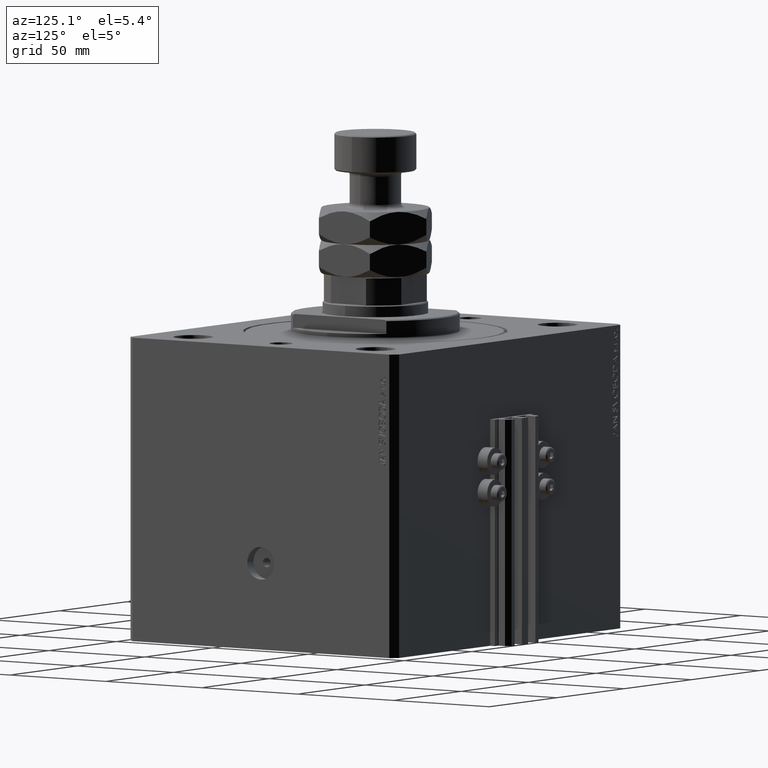
[diagram: clean part render]
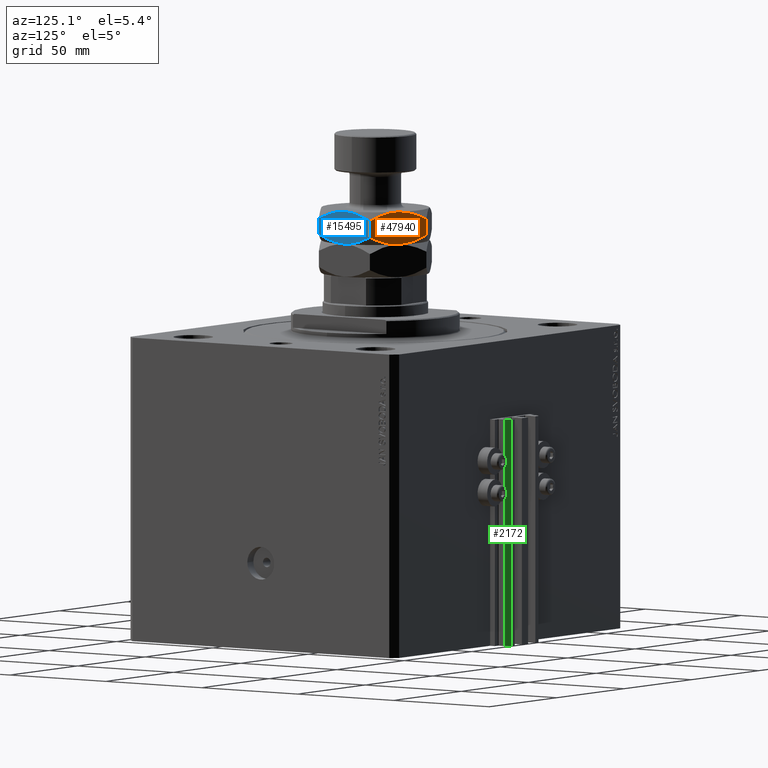
[diagram: same view with three faces highlighted in distinct colors, each labeled with its STEP entity id]
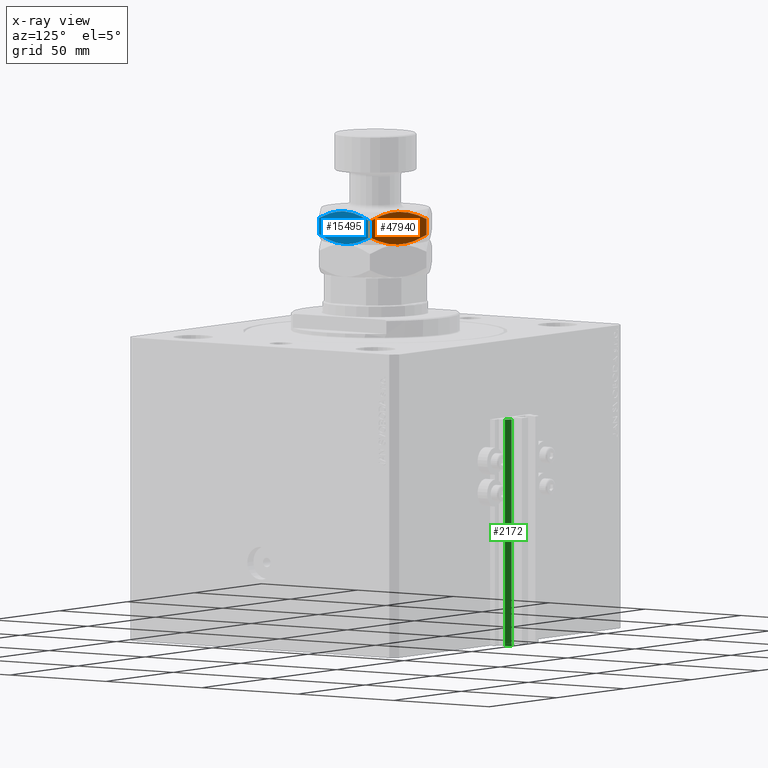
[diagram: x-ray of the same camera — body ghosted, the three highlighted faces saturated]
A machine part, auxiliary view with three faces highlighted in distinct colors.
The next image is the same camera in x-ray (body ghosted, the three faces saturated) — at least one of them is partly hidden behind the body in this view.
Their STEP definitions:

[orange] entity #47940 — the highlighted planar face has unit normal (-0.5, -0.866, 0).
#585 = EDGE_LOOP ( 'NONE', ( #38837, #35297, #18162, #11217, #27389, #2889 ) ) ;
#653 = B_SPLINE_CURVE_WITH_KNOTS ( 'NONE', 3,
 ( #38075, #15069, #7390, #26459, #41553, #3671, #7635, #666, #45029, #45264 ),
 .UNSPECIFIED., .F., .F.,
 ( 4, 2, 2, 2, 4 ),
 ( 2.544306848942777738E-07, 0.006882727124394008057, 0.01032396347124855777, 0.01204458164467583393, 0.01376519981810310662 ),
 .UNSPECIFIED. ) ;
#666 = CARTESIAN_POINT ( 'NONE',  ( 12.51003418050899896, 19.33544078103448527, 27.97785245724465142 ) ) ;
#916 = CARTESIAN_POINT ( 'NONE',  ( 23.00000000000000000, 13.27905619136138959, 17.55811238272277564 ) ) ;
#1055 = FACE_OUTER_BOUND ( 'NONE', #585, .T. ) ;
#1290 = B_SPLINE_CURVE_WITH_KNOTS ( 'NONE', 3,
 ( #19280, #23234, #11356, #45767, #7642, #7396, #37847, #916 ),
 .UNSPECIFIED., .F., .F.,
 ( 4, 2, 2, 4 ),
 ( 0.01376519981810310142, 0.02059946815584628305, 0.02401660232471787559, 0.02743373649358946814 ),
 .UNSPECIFIED. ) ;
#1969 = CARTESIAN_POINT ( 'NONE',  ( 7.485235315951457302, 22.23650975811051467, 14.43516383610315401 ) ) ;
#2433 = CARTESIAN_POINT ( 'NONE',  ( 11.49999999999999822, 19.91858428704208706, 28.00000000000000000 ) ) ;
#2889 = ORIENTED_EDGE ( 'NONE', *, *, #7684, .F. ) ;
#2895 = CARTESIAN_POINT ( 'NONE',  ( 8.974191784962721741, 21.37686033991523260, 14.17725660431697143 ) ) ;
#3391 = VERTEX_POINT ( 'NONE', #45188 ) ;
#3671 = CARTESIAN_POINT ( 'NONE',  ( 14.02580821503727471, 18.46030823416894506, 27.82274339568304100 ) ) ;
#4784 = PLANE ( 'NONE',  #27504 ) ;
#7390 = CARTESIAN_POINT ( 'NONE',  ( 19.35245248169771060, 15.38496873293517098, 26.36778857186889979 ) ) ;
#7396 = CARTESIAN_POINT ( 'NONE',  ( 21.18561130058603226, 14.32659399538265710, 16.55607787929224983 ) ) ;
#7635 = CARTESIAN_POINT ( 'NONE',  ( 13.52432111410264604, 18.74984194688868300, 27.88890122221209822 ) ) ;
#7642 = CARTESIAN_POINT ( 'NONE',  ( 19.32386580747566285, 15.40147325699250835, 15.69106848873858695 ) ) ;
#7684 = EDGE_CURVE ( 'NONE', #16210, #3391, #1290, .T. ) ;
#9074 = CARTESIAN_POINT ( 'NONE',  ( 3.939050586258542253E-17, 26.55811238272278274, 28.00000000000000000 ) ) ;
#9631 = CARTESIAN_POINT ( 'NONE',  ( 3.676134192524337152, 24.43569531709166398, 26.30893151126141305 ) ) ;
#10576 = CARTESIAN_POINT ( 'NONE',  ( 3.647547518302289404, 24.45219984114900669, 15.63221142813110021 ) ) ;
#11217 = ORIENTED_EDGE ( 'NONE', *, *, #14702, .F. ) ;
#11356 = CARTESIAN_POINT ( 'NONE',  ( 15.46660869709777941, 17.62846168800276558, 14.35317254909358020 ) ) ;
#12465 = DIRECTION ( 'NONE',  ( 0.8660254037844385966, -0.4999999999999999445, 0.000000000000000000 ) ) ;
#12540 = LINE ( 'NONE', #9074, #41504 ) ;
#12883 = CARTESIAN_POINT ( 'NONE',  ( 11.49999999999999645, 19.91858428704208706, 14.00000000000000000 ) ) ;
#13130 = CARTESIAN_POINT ( 'NONE',  ( 10.48996581949099038, 20.50172779304968174, 14.02214754275534148 ) ) ;
#13652 = CARTESIAN_POINT ( 'NONE',  ( 23.00000000000000000, 13.27905619136138959, 28.00000000000000000 ) ) ;
#13840 = CARTESIAN_POINT ( 'NONE',  ( 1.814388699413964190, 25.51057457870152234, 25.44392212070776083 ) ) ;
#14702 = EDGE_CURVE ( 'NONE', #31463, #40489, #653, .T. ) ;
#14833 = CARTESIAN_POINT ( 'NONE',  ( 23.00000000000000000, 13.27905619136138959, 24.44188761727722436 ) ) ;
#15069 = CARTESIAN_POINT ( 'NONE',  ( 21.19663298550257480, 14.32023062262917179, 25.48306204854501189 ) ) ;
#15771 = DIRECTION ( 'NONE',  ( -0.000000000000000000, -0.000000000000000000, -1.000000000000000000 ) ) ;
#16210 = VERTEX_POINT ( 'NONE', #12883 ) ;
#18162 = ORIENTED_EDGE ( 'NONE', *, *, #38909, .F. ) ;
#19280 = CARTESIAN_POINT ( 'NONE',  ( 11.49999999999999645, 19.91858428704208706, 14.00000000000000000 ) ) ;
#19900 = DIRECTION ( 'NONE',  ( -0.5000000000000000000, -0.8660254037844387076, 0.000000000000000000 ) ) ;
#23234 = CARTESIAN_POINT ( 'NONE',  ( 13.50031108690881432, 18.76370414255228880, 13.99999999999999467 ) ) ;
#24007 = CARTESIAN_POINT ( 'NONE',  ( 4.624867511207328974, 23.88794388016087211, 26.69215624893394789 ) ) ;
#24281 = CARTESIAN_POINT ( 'NONE',  ( 1.454313212164363718E-16, 26.55811238272278274, 17.55811238272277564 ) ) ;
#24736 = CARTESIAN_POINT ( 'NONE',  ( 0.9006392137919279062, 26.03812809019727581, 24.96187190980276682 ) ) ;
#26459 = CARTESIAN_POINT ( 'NONE',  ( 16.48674779066320539, 17.03948410772190769, 27.31372419864523948 ) ) ;
#27389 = ORIENTED_EDGE ( 'NONE', *, *, #36523, .T. ) ;
#27504 = AXIS2_PLACEMENT_3D ( 'NONE', #31274, #19900, #12465 ) ;
#27985 = CARTESIAN_POINT ( 'NONE',  ( 1.803367014497425203, 25.51693795145501298, 16.51693795145499877 ) ) ;
#28409 = EDGE_CURVE ( 'NONE', #41278, #29967, #12540, .T. ) ;
#28447 = CARTESIAN_POINT ( 'NONE',  ( 7.533391302902213482, 22.20870688608140853, 27.64682745090640736 ) ) ;
#28621 = CARTESIAN_POINT ( 'NONE',  ( -5.585970924421222377E-16, 26.55811238272278274, 24.44188761727722792 ) ) ;
#28929 = CARTESIAN_POINT ( 'NONE',  ( -5.585970924421222377E-16, 26.55811238272278274, 24.44188761727722792 ) ) ;
#29967 = VERTEX_POINT ( 'NONE', #41660 ) ;
#31274 = CARTESIAN_POINT ( 'NONE',  ( 23.00000000000000000, 13.27905619136138959, 28.00000000000000000 ) ) ;
#31463 = VERTEX_POINT ( 'NONE', #14833 ) ;
#32752 = B_SPLINE_CURVE_WITH_KNOTS ( 'NONE', 3,
 ( #24281, #27985, #10576, #46790, #1969, #2895, #47288, #13130, #39373, #43337 ),
 .UNSPECIFIED., .F., .F.,
 ( 4, 2, 2, 2, 4 ),
 ( 2.544306848971009346E-07, 0.006882727124393991577, 0.01032396347124854216, 0.01204458164467582179, 0.01376519981810310142 ),
 .UNSPECIFIED. ) ;
#34485 = CARTESIAN_POINT ( 'NONE',  ( 11.49999999999999822, 19.91858428704208706, 28.00000000000000000 ) ) ;
#35297 = ORIENTED_EDGE ( 'NONE', *, *, #28409, .F. ) ;
#36523 = EDGE_CURVE ( 'NONE', #31463, #3391, #47071, .T. ) ;
#37847 = CARTESIAN_POINT ( 'NONE',  ( 22.09936078620807010, 13.79904048388689475, 17.03812809019723318 ) ) ;
#38075 = CARTESIAN_POINT ( 'NONE',  ( 23.00000000000000000, 13.27905619136138959, 24.44188761727722436 ) ) ;
#38837 = ORIENTED_EDGE ( 'NONE', *, *, #46337, .F. ) ;
#38909 = EDGE_CURVE ( 'NONE', #40489, #41278, #42405, .T. ) ;
#39373 = CARTESIAN_POINT ( 'NONE',  ( 10.99639501427888710, 20.20934076111340261, 13.99999999999999822 ) ) ;
#39639 = DIRECTION ( 'NONE',  ( -0.000000000000000000, -0.000000000000000000, -1.000000000000000000 ) ) ;
#40489 = VERTEX_POINT ( 'NONE', #34485 ) ;
#41278 = VERTEX_POINT ( 'NONE', #28621 ) ;
#41504 = VECTOR ( 'NONE', #15771, 1000.000000000000000 ) ;
#41553 = CARTESIAN_POINT ( 'NONE',  ( 15.51476468404854359, 17.60065881597365944, 27.56483616389684244 ) ) ;
#41660 = CARTESIAN_POINT ( 'NONE',  ( 1.454313212164363718E-16, 26.55811238272278274, 17.55811238272277564 ) ) ;
#42405 = B_SPLINE_CURVE_WITH_KNOTS ( 'NONE', 3,
 ( #2433, #47745, #28447, #24007, #9631, #13840, #24736, #28929 ),
 .UNSPECIFIED., .F., .F.,
 ( 4, 2, 2, 4 ),
 ( 0.01376519981810310662, 0.02059946815584628305, 0.02401660232471787559, 0.02743373649358946814 ),
 .UNSPECIFIED. ) ;
#43337 = CARTESIAN_POINT ( 'NONE',  ( 11.49999999999999645, 19.91858428704208706, 14.00000000000000000 ) ) ;
#45029 = CARTESIAN_POINT ( 'NONE',  ( 12.00360498572110401, 19.62782781297077150, 28.00000000000000000 ) ) ;
#45188 = CARTESIAN_POINT ( 'NONE',  ( 23.00000000000000000, 13.27905619136138959, 17.55811238272277564 ) ) ;
#45264 = CARTESIAN_POINT ( 'NONE',  ( 11.49999999999999822, 19.91858428704208706, 28.00000000000000000 ) ) ;
#45767 = CARTESIAN_POINT ( 'NONE',  ( 18.37513248879266214, 15.94922469392330200, 15.30784375106604323 ) ) ;
#46129 = VECTOR ( 'NONE', #39639, 1000.000000000000000 ) ;
#46337 = EDGE_CURVE ( 'NONE', #29967, #16210, #32752, .T. ) ;
#46790 = CARTESIAN_POINT ( 'NONE',  ( 6.513252209336788390, 22.79768446636226287, 14.68627580135475519 ) ) ;
#47071 = LINE ( 'NONE', #13652, #46129 ) ;
#47288 = CARTESIAN_POINT ( 'NONE',  ( 9.475678885897348636, 21.08732662719549467, 14.11109877778790711 ) ) ;
#47745 = CARTESIAN_POINT ( 'NONE',  ( 9.499688913091182130, 21.07346443153189242, 27.99999999999999645 ) ) ;
#47940 = ADVANCED_FACE ( 'NONE', ( #1055 ), #4784, .F. ) ;

[blue] entity #15495 — the highlighted planar face has unit normal (-1, 0, 0).
#365 = ORIENTED_EDGE ( 'NONE', *, *, #30297, .F. ) ;
#907 = CARTESIAN_POINT ( 'NONE',  ( 23.00000000000001066, -0.5819124658698887620, 14.00000000000000711 ) ) ;
#1657 = EDGE_LOOP ( 'NONE', ( #33255, #18838, #365, #33554, #21807, #41707 ) ) ;
#1804 = CARTESIAN_POINT ( 'NONE',  ( 23.00000000000000000, 13.27905619136138959, 17.55811238272277564 ) ) ;
#1893 = CARTESIAN_POINT ( 'NONE',  ( 23.00000000000000000, -13.27905619136138959, 24.44188761727722792 ) ) ;
#2262 = DIRECTION ( 'NONE',  ( -0.000000000000000000, -0.000000000000000000, -1.000000000000000000 ) ) ;
#3212 = VERTEX_POINT ( 'NONE', #30140 ) ;
#3391 = VERTEX_POINT ( 'NONE', #45188 ) ;
#3735 = CARTESIAN_POINT ( 'NONE',  ( 23.00000000000000000, -1.168850493887471087, 14.02243711562833184 ) ) ;
#4450 = CARTESIAN_POINT ( 'NONE',  ( 23.00000000000000000, 1.168850493887465758, 27.97756288437166461 ) ) ;
#4695 = CARTESIAN_POINT ( 'NONE',  ( 23.00000000000000000, 2.901718448039539044, 27.82452852895291429 ) ) ;
#5152 = CARTESIAN_POINT ( 'NONE',  ( 23.00000000000000711, -4.604003285773378806, 27.64082713328069119 ) ) ;
#5371 = CARTESIAN_POINT ( 'NONE',  ( 23.00000000000000355, -4.611258391204995810, 14.43061535182026667 ) ) ;
#5910 = CARTESIAN_POINT ( 'NONE',  ( 22.99999999999999645, 7.945847288453418145, 26.68926960916466129 ) ) ;
#6262 = CARTESIAN_POINT ( 'NONE',  ( 23.00000000000000355, 2.332866569036886606, 14.00000000000000355 ) ) ;
#6673 = EDGE_CURVE ( 'NONE', #3212, #24665, #20365, .T. ) ;
#7157 = DIRECTION ( 'NONE',  ( 0.000000000000000000, 0.000000000000000000, 1.000000000000000000 ) ) ;
#8364 = CARTESIAN_POINT ( 'NONE',  ( 23.00000000000000711, -12.24912306375521531, 17.04314581891969382 ) ) ;
#9071 = CARTESIAN_POINT ( 'NONE',  ( 22.99999999999999645, 0.000000000000000000, 28.00000000000000000 ) ) ;
#10148 = CARTESIAN_POINT ( 'NONE',  ( 23.00000000000000000, -13.27905619136138959, 28.00000000000000000 ) ) ;
#10392 = CARTESIAN_POINT ( 'NONE',  ( 23.00000000000000000, -13.27905619136138782, 17.55811238272277564 ) ) ;
#12074 = CARTESIAN_POINT ( 'NONE',  ( 23.00000000000000355, -11.19584287463890959, 16.56112058300224632 ) ) ;
#12833 = CARTESIAN_POINT ( 'NONE',  ( 23.00000000000000000, -7.937214062685161942, 26.67444397236640086 ) ) ;
#13572 = CARTESIAN_POINT ( 'NONE',  ( 22.99999999999999645, -11.20010744839417427, 25.43691701641144221 ) ) ;
#13652 = CARTESIAN_POINT ( 'NONE',  ( 23.00000000000000000, 13.27905619136138959, 28.00000000000000000 ) ) ;
#14833 = CARTESIAN_POINT ( 'NONE',  ( 23.00000000000000000, 13.27905619136138959, 24.44188761727722436 ) ) ;
#15495 = ADVANCED_FACE ( 'NONE', ( #48005 ), #32912, .F. ) ;
#15794 = CARTESIAN_POINT ( 'NONE',  ( 23.00000000000000355, -7.945847288453419921, 15.31073039083534226 ) ) ;
#16549 = CARTESIAN_POINT ( 'NONE',  ( 23.00000000000000711, -2.332866569036887938, 27.99999999999999645 ) ) ;
#16649 = B_SPLINE_CURVE_WITH_KNOTS ( 'NONE', 3,
 ( #1804, #16931, #35988, #32277, #47373, #39941, #47119, #40184, #6262, #43905 ),
 .UNSPECIFIED., .F., .F.,
 ( 4, 2, 2, 2, 4 ),
 ( 0.03391842154671734916, 0.03738166515001972723, 0.03911328695167091973, 0.04084490875332210530, 0.04777139595992687532 ),
 .UNSPECIFIED. ) ;
#16931 = CARTESIAN_POINT ( 'NONE',  ( 22.99999999999999289, 12.24963129209448276, 17.04339993308932222 ) ) ;
#18105 = LINE ( 'NONE', #24565, #18504 ) ;
#18504 = VECTOR ( 'NONE', #2262, 1000.000000000000000 ) ;
#18838 = ORIENTED_EDGE ( 'NONE', *, *, #36523, .F. ) ;
#19816 = CARTESIAN_POINT ( 'NONE',  ( 23.00000000000000355, 4.611258391204997586, 27.56938464817973511 ) ) ;
#20365 = B_SPLINE_CURVE_WITH_KNOTS ( 'NONE', 3,
 ( #44841, #907, #3735, #37658, #20498, #5371, #27663, #15794, #46475, #12074, #8364, #30885 ),
 .UNSPECIFIED., .F., .F.,
 ( 4, 2, 2, 2, 2, 4 ),
 ( 0.04777139595992687532, 0.04949914554651194121, 0.05122689513309700016, 0.05468239430626712499, 0.05813789347943724983, 0.06159339265260737467 ),
 .UNSPECIFIED. ) ;
#20498 = CARTESIAN_POINT ( 'NONE',  ( 23.00000000000000355, -2.901718448039537712, 14.17547147104708571 ) ) ;
#20786 = CARTESIAN_POINT ( 'NONE',  ( 23.00000000000000000, 5.732845801352522308, 27.32003707801577619 ) ) ;
#21807 = ORIENTED_EDGE ( 'NONE', *, *, #37461, .T. ) ;
#21922 = EDGE_CURVE ( 'NONE', #3391, #3212, #16649, .T. ) ;
#22511 = DIRECTION ( 'NONE',  ( -1.000000000000000000, 0.000000000000000000, 0.000000000000000000 ) ) ;
#24565 = CARTESIAN_POINT ( 'NONE',  ( 23.00000000000000000, -13.27905619136138959, 28.00000000000000000 ) ) ;
#24665 = VERTEX_POINT ( 'NONE', #10392 ) ;
#27663 = CARTESIAN_POINT ( 'NONE',  ( 23.00000000000000711, -5.732845801352522308, 14.67996292198422736 ) ) ;
#28666 = CARTESIAN_POINT ( 'NONE',  ( 22.99999999999999645, -7.384104261058114460, 26.84961951312581618 ) ) ;
#30140 = CARTESIAN_POINT ( 'NONE',  ( 22.99999999999999645, 0.000000000000000000, 14.00000000000000000 ) ) ;
#30297 = EDGE_CURVE ( 'NONE', #43882, #31463, #48874, .T. ) ;
#30885 = CARTESIAN_POINT ( 'NONE',  ( 23.00000000000000000, -13.27905619136138782, 17.55811238272277564 ) ) ;
#31463 = VERTEX_POINT ( 'NONE', #14833 ) ;
#31645 = CARTESIAN_POINT ( 'NONE',  ( 22.99999999999999645, 0.000000000000000000, 28.00000000000000000 ) ) ;
#31919 = CARTESIAN_POINT ( 'NONE',  ( 23.00000000000000355, 11.19584287463890782, 25.43887941699775368 ) ) ;
#32277 = CARTESIAN_POINT ( 'NONE',  ( 22.99999999999999289, 9.585014738077491714, 15.91244084231266420 ) ) ;
#32391 = CARTESIAN_POINT ( 'NONE',  ( 23.00000000000000000, -13.27905619136138959, 24.44188761727722792 ) ) ;
#32623 = CARTESIAN_POINT ( 'NONE',  ( 22.99999999999999289, -9.585014738077486385, 26.08755915768734468 ) ) ;
#32650 = CARTESIAN_POINT ( 'NONE',  ( 23.00000000000000711, 12.24912306375522242, 24.95685418108031328 ) ) ;
#32912 = PLANE ( 'NONE',  #45043 ) ;
#33255 = ORIENTED_EDGE ( 'NONE', *, *, #21922, .F. ) ;
#33554 = ORIENTED_EDGE ( 'NONE', *, *, #43633, .F. ) ;
#34421 = CARTESIAN_POINT ( 'NONE',  ( 22.99999999999999645, 0.000000000000000000, 28.00000000000000000 ) ) ;
#35881 = CARTESIAN_POINT ( 'NONE',  ( 23.00000000000000355, 9.037287856520077156, 26.30796566528420399 ) ) ;
#35988 = CARTESIAN_POINT ( 'NONE',  ( 23.00000000000000000, 11.20010744839417782, 16.56308298358856135 ) ) ;
#36378 = CARTESIAN_POINT ( 'NONE',  ( 23.00000000000000000, 13.27905619136138959, 24.44188761727722436 ) ) ;
#36523 = EDGE_CURVE ( 'NONE', #31463, #3391, #47071, .T. ) ;
#37461 = EDGE_CURVE ( 'NONE', #37995, #24665, #18105, .T. ) ;
#37658 = CARTESIAN_POINT ( 'NONE',  ( 23.00000000000000000, -2.327345773459499334, 14.11023447772089945 ) ) ;
#37995 = VERTEX_POINT ( 'NONE', #1893 ) ;
#38372 = CARTESIAN_POINT ( 'NONE',  ( 23.00000000000000711, 0.5819124658698872077, 28.00000000000000000 ) ) ;
#38622 = CARTESIAN_POINT ( 'NONE',  ( 22.99999999999999289, 2.327345773459494005, 27.88976552227909878 ) ) ;
#39639 = DIRECTION ( 'NONE',  ( -0.000000000000000000, -0.000000000000000000, -1.000000000000000000 ) ) ;
#39941 = CARTESIAN_POINT ( 'NONE',  ( 23.00000000000001066, 7.937214062685167271, 15.32555602763360092 ) ) ;
#40184 = CARTESIAN_POINT ( 'NONE',  ( 23.00000000000000355, 4.604003285773385024, 14.35917286671931059 ) ) ;
#41707 = ORIENTED_EDGE ( 'NONE', *, *, #6673, .F. ) ;
#43633 = EDGE_CURVE ( 'NONE', #37995, #43882, #46848, .T. ) ;
#43882 = VERTEX_POINT ( 'NONE', #9071 ) ;
#43905 = CARTESIAN_POINT ( 'NONE',  ( 22.99999999999999645, 0.000000000000000000, 14.00000000000000000 ) ) ;
#44017 = CARTESIAN_POINT ( 'NONE',  ( 23.00000000000000000, -9.038140464506012606, 26.29329459371818345 ) ) ;
#44841 = CARTESIAN_POINT ( 'NONE',  ( 22.99999999999999645, 0.000000000000000000, 14.00000000000000000 ) ) ;
#45043 = AXIS2_PLACEMENT_3D ( 'NONE', #10148, #22511, #7157 ) ;
#45188 = CARTESIAN_POINT ( 'NONE',  ( 23.00000000000000000, 13.27905619136138959, 17.55811238272277564 ) ) ;
#46129 = VECTOR ( 'NONE', #39639, 1000.000000000000000 ) ;
#46475 = CARTESIAN_POINT ( 'NONE',  ( 23.00000000000000355, -9.037287856520078932, 15.69203433471579778 ) ) ;
#46848 = B_SPLINE_CURVE_WITH_KNOTS ( 'NONE', 3,
 ( #32391, #47486, #13572, #32623, #44017, #12833, #28666, #5152, #16549, #31645 ),
 .UNSPECIFIED., .F., .F.,
 ( 4, 2, 2, 2, 4 ),
 ( 0.03391842154671734916, 0.03738166515001972723, 0.03911328695167091973, 0.04084490875332210530, 0.04777139595992686838 ),
 .UNSPECIFIED. ) ;
#47071 = LINE ( 'NONE', #13652, #46129 ) ;
#47119 = CARTESIAN_POINT ( 'NONE',  ( 23.00000000000000711, 7.384104261058126895, 15.15038048687418559 ) ) ;
#47373 = CARTESIAN_POINT ( 'NONE',  ( 23.00000000000000355, 9.038140464506014382, 15.70670540628181477 ) ) ;
#47486 = CARTESIAN_POINT ( 'NONE',  ( 23.00000000000000000, -12.24963129209447565, 24.95660006691067778 ) ) ;
#48005 = FACE_OUTER_BOUND ( 'NONE', #1657, .T. ) ;
#48874 = B_SPLINE_CURVE_WITH_KNOTS ( 'NONE', 3,
 ( #34421, #38372, #4450, #38622, #4695, #19816, #20786, #5910, #35881, #31919, #32650, #36378 ),
 .UNSPECIFIED., .F., .F.,
 ( 4, 2, 2, 2, 2, 4 ),
 ( 0.04777139595992686838, 0.04949914554651193427, 0.05122689513309699322, 0.05468239430626712499, 0.05813789347943724983, 0.06159339265260738161 ),
 .UNSPECIFIED. ) ;

[green] entity #2172 — the highlighted planar face has unit normal (0.7071, 0.7071, 0).
#1166 = ORIENTED_EDGE ( 'NONE', *, *, #25589, .T. ) ;
#2172 = ADVANCED_FACE ( 'NONE', ( #46320 ), #27506, .T. ) ;
#2288 = LINE ( 'NONE', #39195, #14562 ) ;
#3194 = CARTESIAN_POINT ( 'NONE',  ( 9.999999999999998224, 78.00000000000002842, -130.0000000000000000 ) ) ;
#5698 = VERTEX_POINT ( 'NONE', #14812 ) ;
#6340 = CARTESIAN_POINT ( 'NONE',  ( 12.00000000000000000, 76.00000000000002842, -33.00000000000000000 ) ) ;
#9909 = DIRECTION ( 'NONE',  ( 0.000000000000000000, 0.000000000000000000, 1.000000000000000000 ) ) ;
#14433 = EDGE_CURVE ( 'NONE', #5698, #18318, #27005, .T. ) ;
#14562 = VECTOR ( 'NONE', #17412, 1000.000000000000114 ) ;
#14812 = CARTESIAN_POINT ( 'NONE',  ( 12.00000000000000000, 76.00000000000002842, -130.0000000000000000 ) ) ;
#16313 = CARTESIAN_POINT ( 'NONE',  ( 12.00000000000000000, 76.00000000000002842, -33.00000000000000000 ) ) ;
#17412 = DIRECTION ( 'NONE',  ( -0.7071067811865474617, 0.7071067811865474617, 0.000000000000000000 ) ) ;
#18318 = VERTEX_POINT ( 'NONE', #16313 ) ;
#18449 = CARTESIAN_POINT ( 'NONE',  ( 9.999999999999998224, 78.00000000000002842, -130.0000000000000000 ) ) ;
#21664 = VERTEX_POINT ( 'NONE', #18449 ) ;
#21941 = LINE ( 'NONE', #6340, #39878 ) ;
#25589 = EDGE_CURVE ( 'NONE', #5698, #21664, #2288, .T. ) ;
#27005 = LINE ( 'NONE', #38631, #48142 ) ;
#27506 = PLANE ( 'NONE',  #36496 ) ;
#30729 = DIRECTION ( 'NONE',  ( -0.7071067811865474617, 0.7071067811865474617, 0.000000000000000000 ) ) ;
#33320 = DIRECTION ( 'NONE',  ( -0.7071067811865474617, 0.7071067811865474617, 0.000000000000000000 ) ) ;
#33601 = EDGE_CURVE ( 'NONE', #21664, #40668, #43817, .T. ) ;
#36496 = AXIS2_PLACEMENT_3D ( 'NONE', #37921, #42609, #30729 ) ;
#37577 = EDGE_LOOP ( 'NONE', ( #44949, #43676, #1166, #46404 ) ) ;
#37921 = CARTESIAN_POINT ( 'NONE',  ( 12.00000000000000000, 76.00000000000002842, -130.0000000000000000 ) ) ;
#38216 = VECTOR ( 'NONE', #9909, 1000.000000000000000 ) ;
#38631 = CARTESIAN_POINT ( 'NONE',  ( 12.00000000000000000, 76.00000000000002842, -130.0000000000000000 ) ) ;
#39195 = CARTESIAN_POINT ( 'NONE',  ( 12.00000000000000000, 76.00000000000002842, -130.0000000000000000 ) ) ;
#39361 = EDGE_CURVE ( 'NONE', #18318, #40668, #21941, .T. ) ;
#39878 = VECTOR ( 'NONE', #33320, 1000.000000000000114 ) ;
#40668 = VERTEX_POINT ( 'NONE', #47817 ) ;
#42092 = DIRECTION ( 'NONE',  ( 0.000000000000000000, 0.000000000000000000, 1.000000000000000000 ) ) ;
#42609 = DIRECTION ( 'NONE',  ( 0.7071067811865475727, 0.7071067811865475727, -0.000000000000000000 ) ) ;
#43676 = ORIENTED_EDGE ( 'NONE', *, *, #14433, .F. ) ;
#43817 = LINE ( 'NONE', #3194, #38216 ) ;
#44949 = ORIENTED_EDGE ( 'NONE', *, *, #39361, .F. ) ;
#46320 = FACE_OUTER_BOUND ( 'NONE', #37577, .T. ) ;
#46404 = ORIENTED_EDGE ( 'NONE', *, *, #33601, .T. ) ;
#47817 = CARTESIAN_POINT ( 'NONE',  ( 9.999999999999998224, 78.00000000000002842, -33.00000000000000000 ) ) ;
#48142 = VECTOR ( 'NONE', #42092, 1000.000000000000000 ) ;